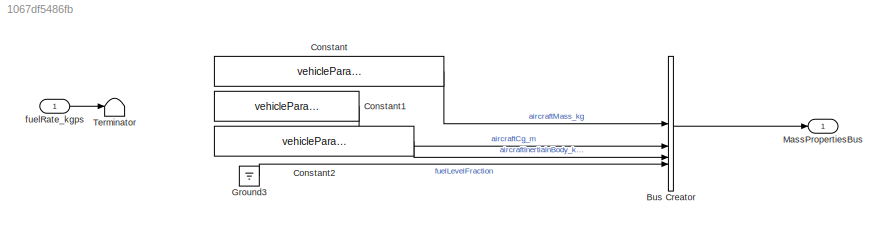
MODEL slx_1067df5486fb
KIND model
BLOCK [BusCreator] Bus Creator
  DisplayOption = bar
  InheritFromInputs = on
  Inputs = 4
BLOCK [Constant] Constant
  Value = vehicleParams.dryMass_kg
BLOCK [Constant] Constant1
  Value = vehicleParams.aircraftCg_m
BLOCK [Constant] Constant2
  Value = vehicleParams.aircraftInertialBody_kgm2
BLOCK [Ground] Ground3
BLOCK [Outport] MassPropertiesBus
  OutDataTypeStr = Bus: MassPropertiesBus
BLOCK [Terminator] Terminator
BLOCK [Inport] fuelRate_kgps
LINE Bus Creator:1 -> MassPropertiesBus:1
LINE Constant1:1 -> Bus Creator:2
LINE Constant2:1 -> Bus Creator:3
LINE Constant:1 -> Bus Creator:1
LINE Ground3:1 -> Bus Creator:4
LINE fuelRate_kgps:1 -> Terminator:1
